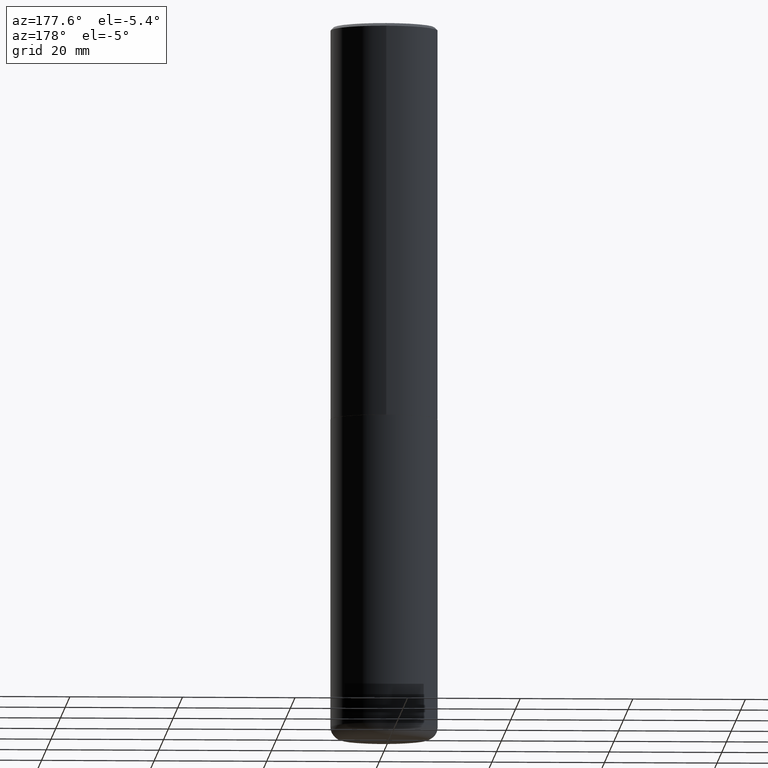
[diagram: clean part render]
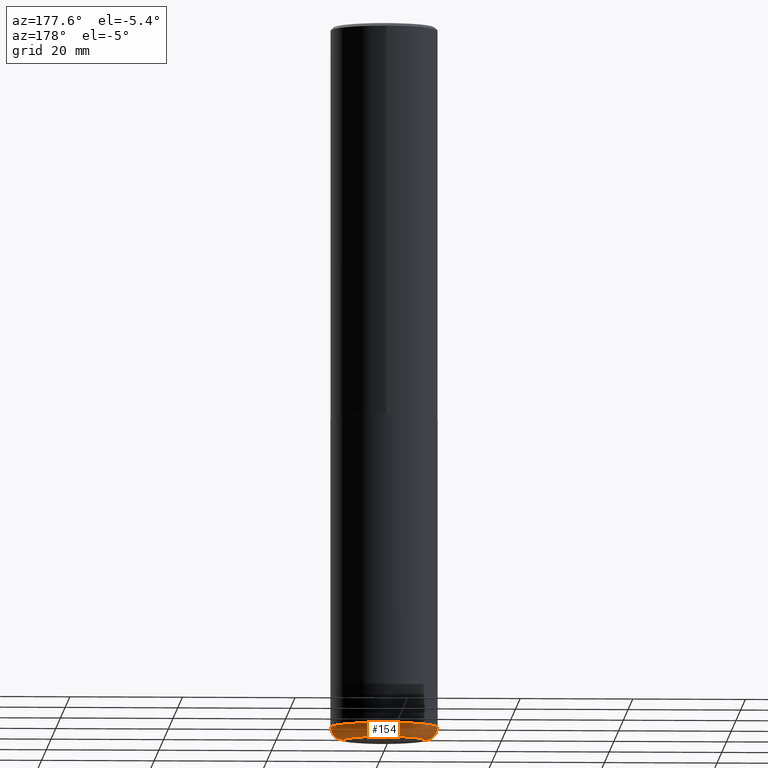
[diagram: same view with one face highlighted and labeled with its STEP entity id]
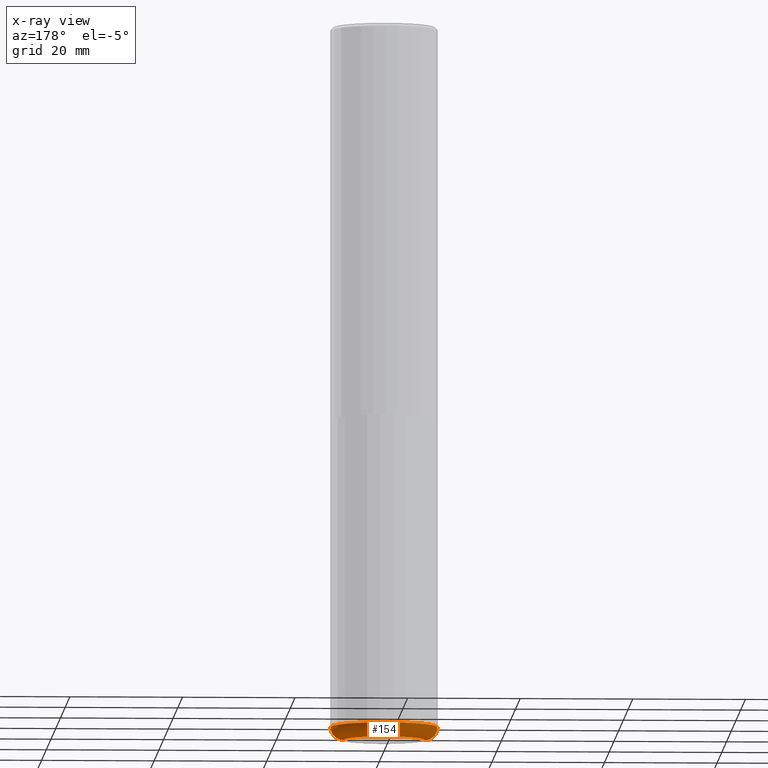
[diagram: x-ray of the same camera — body ghosted, the highlighted face saturated]
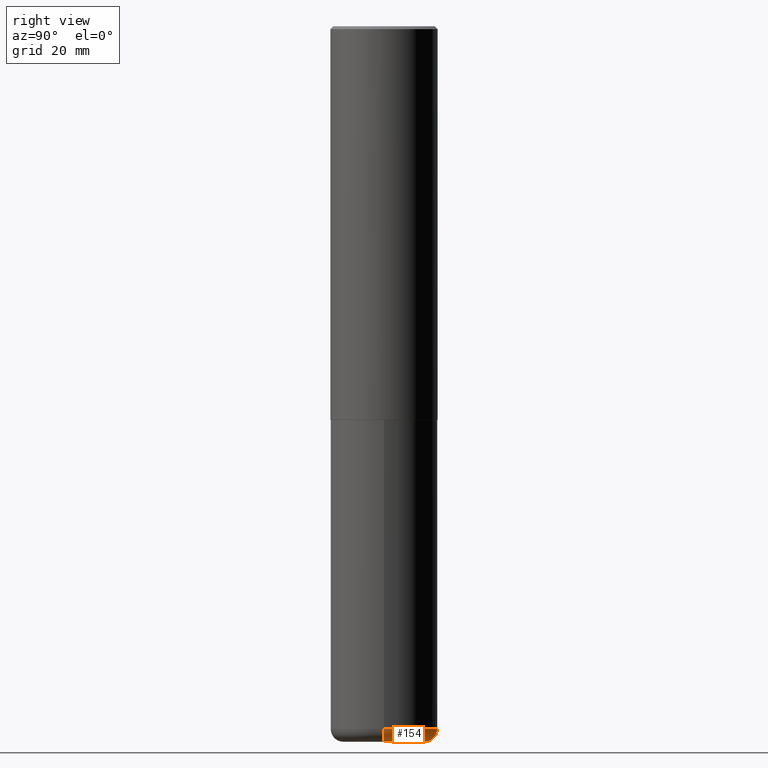
[diagram: same view with one face highlighted and labeled with its STEP entity id]
A machine part, auxiliary view. The second image highlights one B-rep face of the part: STEP entity #154.
The next image is the same camera in x-ray: the body ghosted, the highlighted face saturated — about 0% of this face is hidden behind the body in this view.
A second angle (right view) of the same face is appended — the face is thin or edge-on in the first view.
In plain terms, the highlighted toroidal blend (fillet) surface has major radius 7.239 mm and minor (blend) radius 2.286 mm.
Its self-contained STEP definition (entity closure, byte-faithful):
#5 = VERTEX_POINT ( 'NONE', #277 ) ;
#18 = CIRCLE ( 'NONE', #185, 0.08999999999999992728 ) ;
#25 = EDGE_LOOP ( 'NONE', ( #382, #86, #359, #127 ) ) ;
#39 = CARTESIAN_POINT ( 'NONE',  ( 0.3749999999999999445, -1.976178437785219664E-14, -4.910000000000000142 ) ) ;
#42 = AXIS2_PLACEMENT_3D ( 'NONE', #241, #366, #76 ) ;
#47 = DIRECTION ( 'NONE',  ( 1.000000000000000000, -6.982962677686266711E-15, 0.000000000000000000 ) ) ;
#66 = DIRECTION ( 'NONE',  ( -6.982962677686266711E-15, -1.000000000000000000, 3.491481338843145583E-15 ) ) ;
#76 = DIRECTION ( 'NONE',  ( 1.000000000000000000, -6.982962677686269077E-15, 4.883557194083113462E-29 ) ) ;
#79 = DIRECTION ( 'NONE',  ( -2.445468806185136597E-29, 3.491481338843145583E-15, 1.000000000000000000 ) ) ;
#86 = ORIENTED_EDGE ( 'NONE', *, *, #296, .T. ) ;
#92 = AXIS2_PLACEMENT_3D ( 'NONE', #369, #79, #47 ) ;
#109 = CIRCLE ( 'NONE', #272, 0.08999999999999992728 ) ;
#124 = VERTEX_POINT ( 'NONE', #370 ) ;
#127 = ORIENTED_EDGE ( 'NONE', *, *, #200, .F. ) ;
#134 = CARTESIAN_POINT ( 'NONE',  ( 1.200725183836902132E-28, -1.714317337371984662E-14, -4.910000000000000142 ) ) ;
#154 = ADVANCED_FACE ( 'NONE', ( #196 ), #227, .T. ) ;
#161 = CIRCLE ( 'NONE', #310, 0.3749999999999999445 ) ;
#170 = DIRECTION ( 'NONE',  ( 7.105427357601001859E-15, 1.000000000000000000, -3.491481338843145583E-15 ) ) ;
#185 = AXIS2_PLACEMENT_3D ( 'NONE', #190, #66, #323 ) ;
#190 = CARTESIAN_POINT ( 'NONE',  ( 0.2850000000000000311, -1.913331773686043011E-14, -4.910000000000000142 ) ) ;
#196 = FACE_OUTER_BOUND ( 'NONE', #25, .T. ) ;
#197 = DIRECTION ( 'NONE',  ( -2.445468806185136597E-29, 3.491481338843145583E-15, 1.000000000000000000 ) ) ;
#200 = EDGE_CURVE ( 'NONE', #124, #321, #18, .T. ) ;
#221 = CARTESIAN_POINT ( 'NONE',  ( -0.3749999999999999445, -1.447863811461947092E-14, -4.910000000000000142 ) ) ;
#227 = TOROIDAL_SURFACE ( 'NONE', #42, 0.2850000000000000311, 0.08999999999999989952 ) ;
#241 = CARTESIAN_POINT ( 'NONE',  ( 1.200725183836902132E-28, -1.714317337371984662E-14, -4.910000000000000142 ) ) ;
#264 = DIRECTION ( 'NONE',  ( 1.000000000000000000, -6.982962677686269077E-15, 0.000000000000000000 ) ) ;
#272 = AXIS2_PLACEMENT_3D ( 'NONE', #297, #170, #329 ) ;
#277 = CARTESIAN_POINT ( 'NONE',  ( -0.2850000000000000311, -1.495549900595945556E-14, -5.000000000000000000 ) ) ;
#288 = EDGE_CURVE ( 'NONE', #321, #373, #161, .T. ) ;
#296 = EDGE_CURVE ( 'NONE', #5, #373, #109, .T. ) ;
#297 = CARTESIAN_POINT ( 'NONE',  ( -0.2850000000000000311, -1.511812657680356008E-14, -4.910000000000000142 ) ) ;
#310 = AXIS2_PLACEMENT_3D ( 'NONE', #134, #197, #264 ) ;
#321 = VERTEX_POINT ( 'NONE', #39 ) ;
#323 = DIRECTION ( 'NONE',  ( 1.000000000000000000, -6.982962677686273810E-15, 0.000000000000000000 ) ) ;
#329 = DIRECTION ( 'NONE',  ( -1.000000000000000000, 7.105427357600996337E-15, 0.000000000000000000 ) ) ;
#359 = ORIENTED_EDGE ( 'NONE', *, *, #288, .F. ) ;
#362 = EDGE_CURVE ( 'NONE', #124, #5, #364, .T. ) ;
#364 = CIRCLE ( 'NONE', #92, 0.2850000000000000311 ) ;
#366 = DIRECTION ( 'NONE',  ( -2.445468806185136597E-29, 3.491481338843145583E-15, 1.000000000000000000 ) ) ;
#369 = CARTESIAN_POINT ( 'NONE',  ( 1.222734403092568523E-28, -1.745740669421572989E-14, -5.000000000000000000 ) ) ;
#370 = CARTESIAN_POINT ( 'NONE',  ( 0.2850000000000000311, -1.944755105735631653E-14, -5.000000000000000000 ) ) ;
#373 = VERTEX_POINT ( 'NONE', #221 ) ;
#382 = ORIENTED_EDGE ( 'NONE', *, *, #362, .T. ) ;